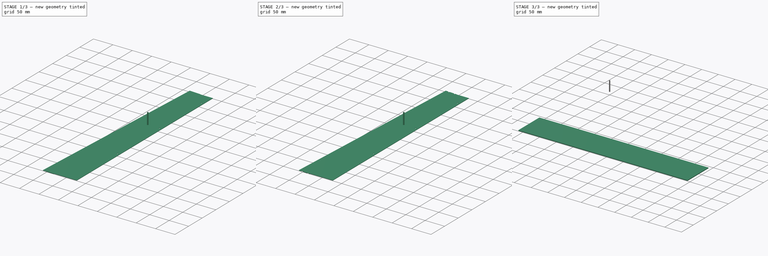
[diagram: build sequence overview — one tinted view per stage of 3, left to right]
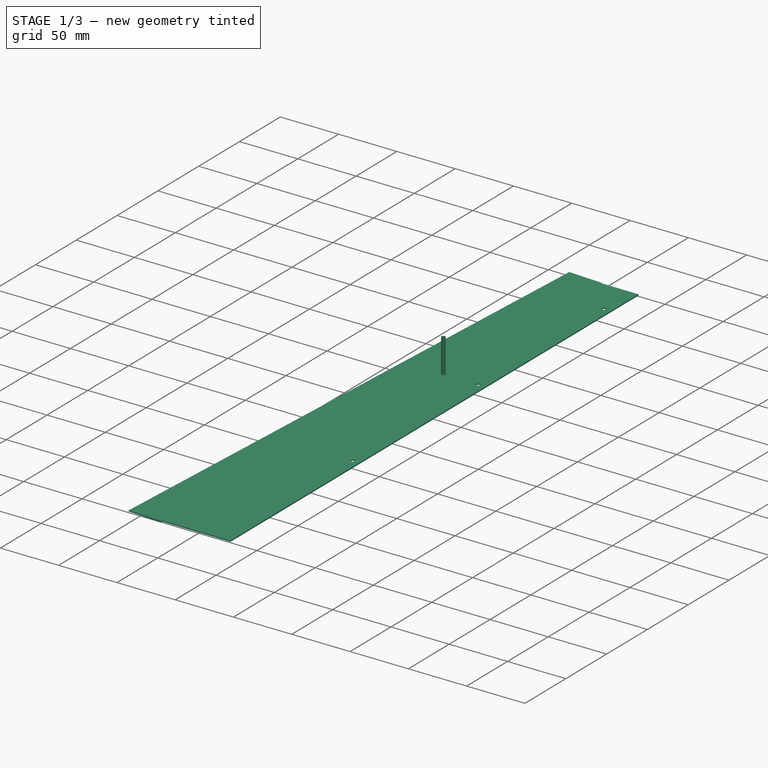
[diagram: stage 1 of 3 — iso view after this stage's code; geometry added in this stage tinted green]
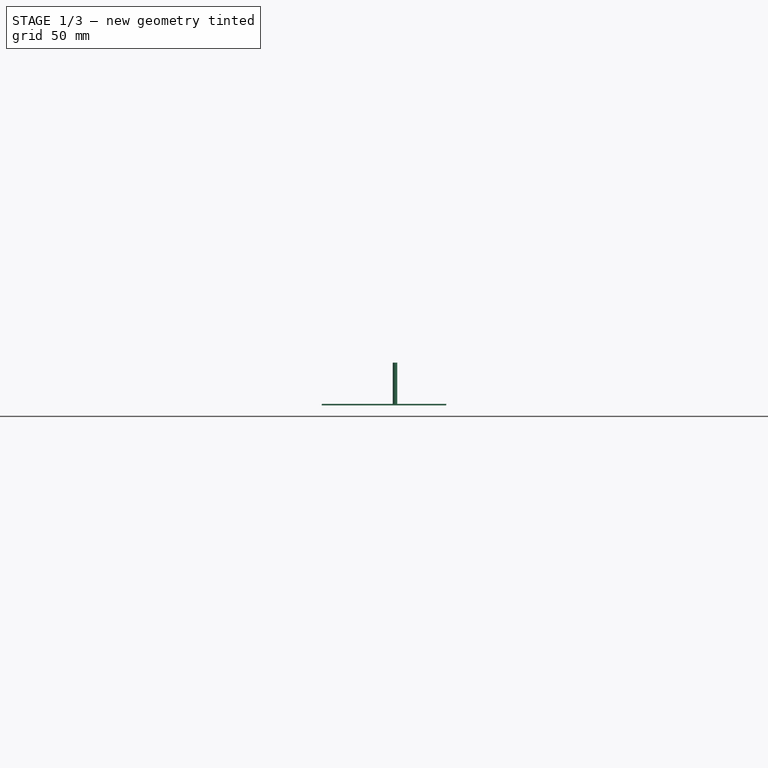
[diagram: stage 1 of 3 — front view after this stage's code; geometry added in this stage tinted green]
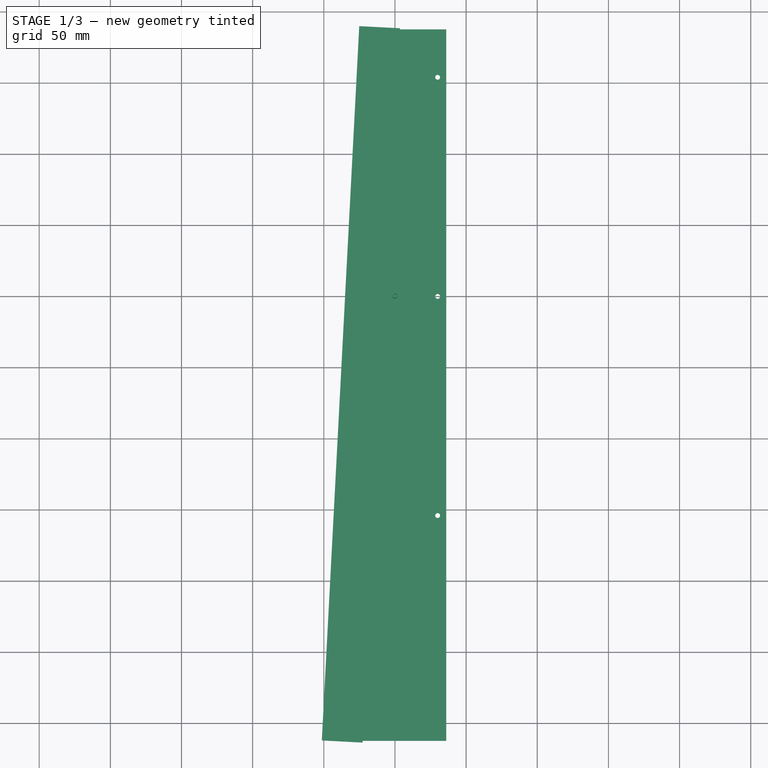
[diagram: stage 1 of 3 — top view after this stage's code; geometry added in this stage tinted green]
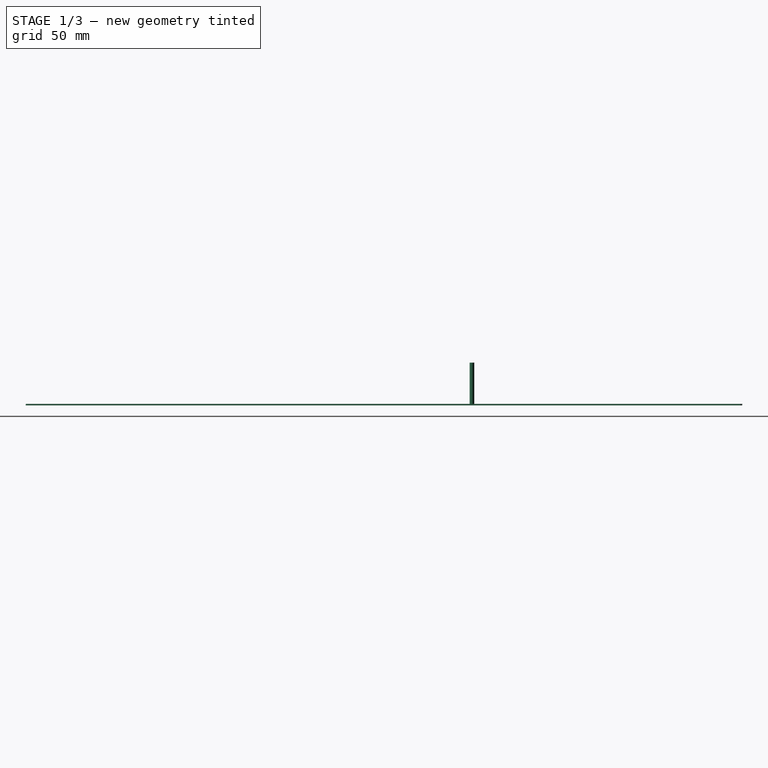
[diagram: stage 1 of 3 — right view after this stage's code; geometry added in this stage tinted green]
FCSTD DOCUMENT  (FreeCAD 0.22R34651 (Git))
Label: composit_stand7_plexiglass_cut
License: All rights reserved
LicenseURL: http://en.wikipedia.org/wiki/All_rights_reserved
objects: App::DocumentObjectGroup×7, Path::FeaturePython×4, Part::FeaturePython×3, Sketcher::SketchObject×2, Part::Part2DObjectPython×2, App::Link×1, Part::Feature×1, PartDesign::FeatureBase×1, App::FeaturePython×1, PartDesign::SubShapeBinder×1, PartDesign::Pocket×1, PartDesign::Body×1
note: 15 computed .brp shape members not serialized (recipe doc carries the construction recipe); baked Part::Feature solids carry a one-line shape summary decoded from their .brp
EXTERNAL_REF file=composit_stand7.FCStd obj=Body011

FEATURE [App::Link] Link  label="sink2_material_0.30ansi"
  LinkedObject = -> <external composit_stand7.FCStd>#Body011
FEATURE [App::DocumentObjectGroup] Group  label="parts"
  Group = -> [Link]
FEATURE [Part::Feature] Unfold  label="sink2_Unfold"
  Placement = pos=(0,0,0) rot=(0.57735,0.57735,0.57735;2.0944rad)
  shape: bbox 87.41 x 503.5 x 1 mm, 13 faces (baked)
FEATURE [Sketcher::SketchObject] Unfold_Sketch_bends  label="sink2_Sketch_bends"
  FullyConstrained = false
  sketch-geometry (2):
    g0: LineSegment StartX=-42.898 StartY=-312.498 StartZ=0 EndX=-16.5884 EndY=189.518 EndZ=0
    g1: LineSegment StartX=-27.5121 StartY=-313.305 StartZ=0 EndX=-1.20254 EndY=188.712 EndZ=0
FEATURE [Part::Part2DObjectPython] Clone2D  label="sink2_Sketch_bends (2D)"  # Draft 2D object (typed FeaturePython)
  Fuse = false
  Objects = -> [Unfold_Sketch_bends]
  Scale = (1,1,1)
FEATURE [PartDesign::FeatureBase] Clone
  BaseFeature = -> Unfold
  Placement = pos=(0,0,0) rot=(0.57735,0.57735,0.57735;2.0944rad)
  expr: BaseFeature = <<sink2_Unfold>>._self
  expr: Placement = .BaseFeature.Placement
FEATURE [App::FeaturePython] SetupSheet  # Path/CAM operation (typed FeaturePython)
  ClearanceHeightExpression = OpStockZMax+SetupSheet.ClearanceHeightOffset
  ClearanceHeightOffset = 5
  CoolantMode = 0
  CoolantModes = None | Flood | Mist
  FinalDepthExpression = -0.1 mm
  HorizRapid = 0
  ProfileDirection = 1
  ProfileSide = 0
  ProfileUseComp = true
  ProfileprocessCircles = true
  ProfileprocessHoles = true
  ProfileprocessPerimeter = true
  SafeHeightExpression = OpStockZMax+SetupSheet.SafeHeightOffset
  SafeHeightOffset = 3
  StartDepthExpression = 3 mm
  StepDownExpression = 4 mm
  VertRapid = 0
FEATURE [Part::FeaturePython] ToolBit  label="3.175mm Endmill"  # Path/CAM toolbit (typed FeaturePython)
  BitPropertyNames = Chipload | CuttingEdgeHeight | Diameter | Flutes | Length | Material | ShankDiameter | SpindleDirection
  BitShape = <path>
  Chipload = 0
  CuttingEdgeHeight = 30
  Diameter = 3.17
  Flutes = 0
  Length = 10
  Material = 0
  ShankDiameter = 3
  ShapeName = endmill
  SpindleDirection = 0
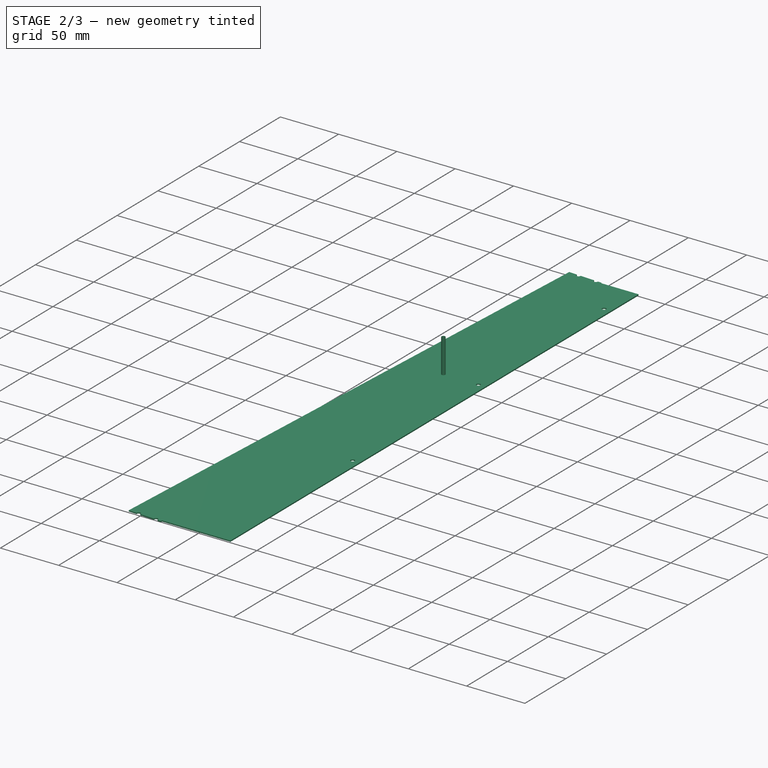
[diagram: stage 2 of 3 — iso view after this stage's code; geometry added in this stage tinted green]
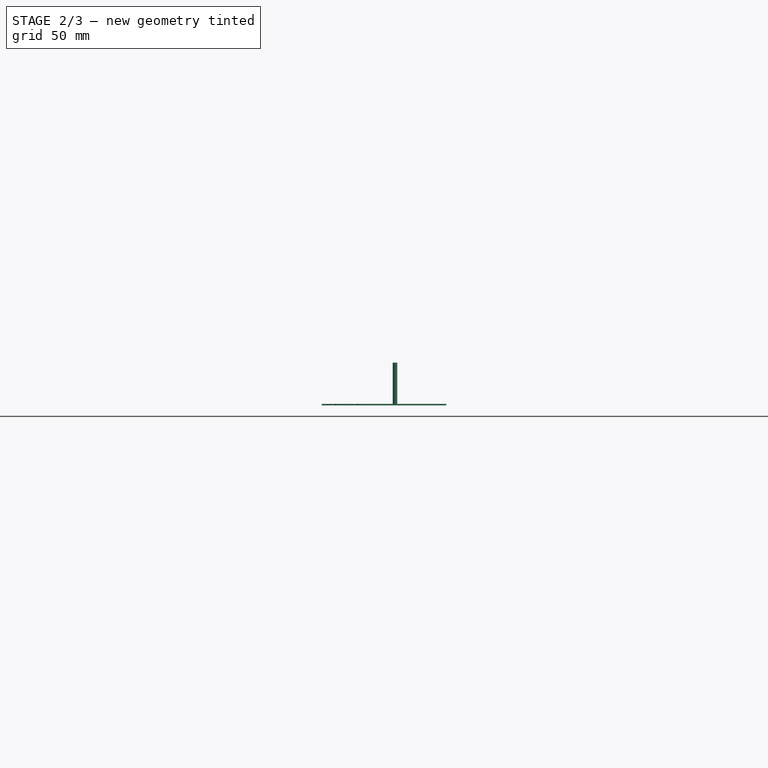
[diagram: stage 2 of 3 — front view after this stage's code; geometry added in this stage tinted green]
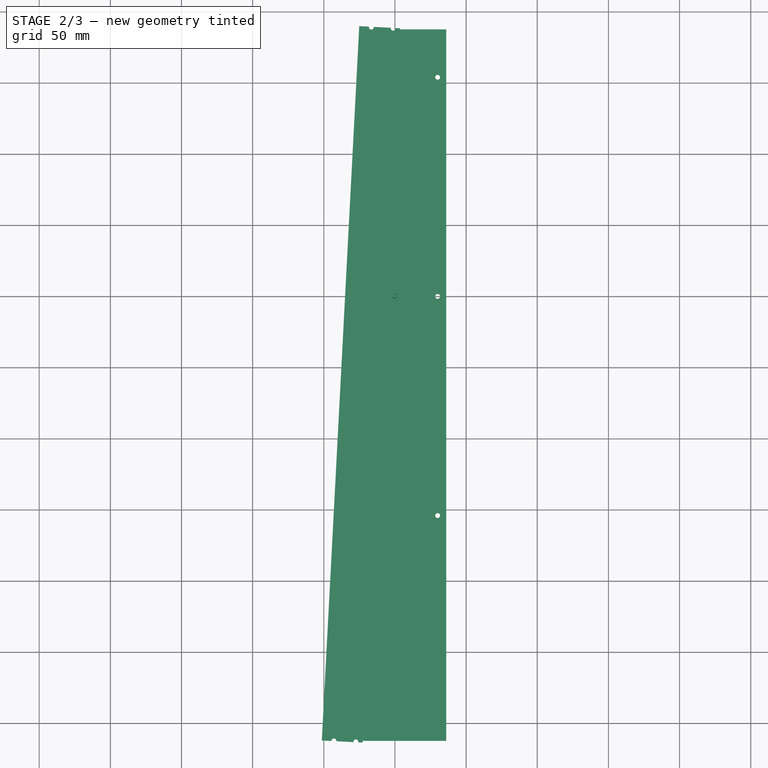
[diagram: stage 2 of 3 — top view after this stage's code; geometry added in this stage tinted green]
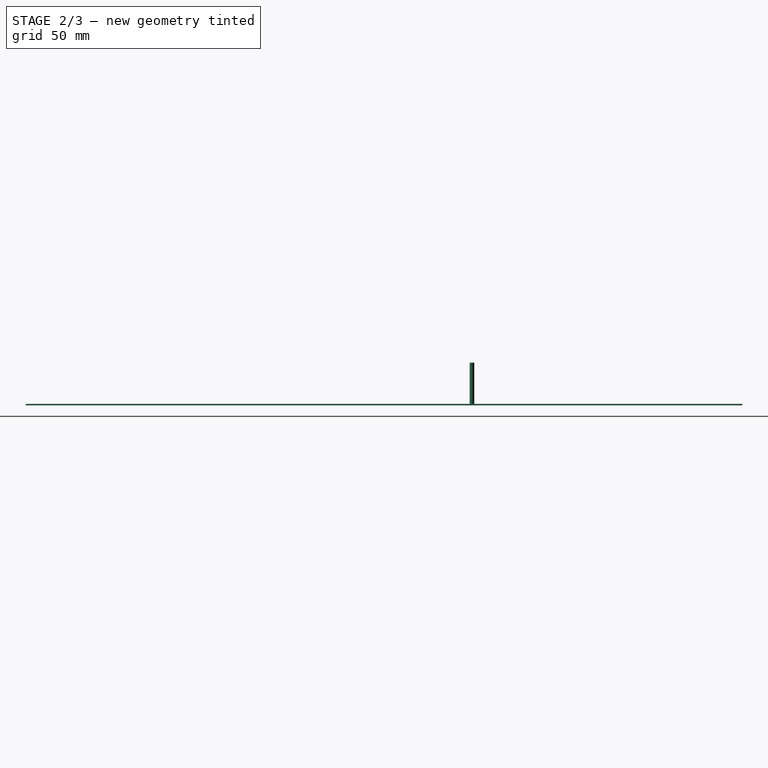
[diagram: stage 2 of 3 — right view after this stage's code; geometry added in this stage tinted green]
FEATURE [Path::FeaturePython] __175mm_Endmill  label="3.175mm Endmill001"  # Path/CAM operation (typed FeaturePython)
  HorizFeed = 33.3333
  HorizRapid = 0
  SpindleDir = 0
  SpindleSpeed = 18000
  Tool = -> ToolBit
  ToolNumber = 1
  VertFeed = 8.33333
  VertRapid = 0
  expr: HorizRapid = SetupSheet.HorizRapid
  expr: VertRapid = SetupSheet.VertRapid
FEATURE [App::DocumentObjectGroup] Tools
  Group = -> [__175mm_Endmill]
FEATURE [PartDesign::SubShapeBinder] Binder
  BindCopyOnChange = 0
  BindMode = 0
  ClaimChildren = false
  Context = -> Body [Binder.]
  Fuse = false
  MakeFace = true
  OffsetFill = false
  OffsetIntersection = false
  OffsetJoinType = 0
  OffsetOpenResult = false
  PartialLoad = false
  Relative = true
  Support = -> [Unfold_Sketch_bends]
  _Version = 2
FEATURE [Sketcher::SketchObject] Sketch
  ExternalGeometry = -> [Binder]
  FullyConstrained = false
  MapMode = 5
  Support = -> [XY_Plane]
  sketch-geometry (4):
    g0: Circle CenterX=-1.21613 CenterY=188.453 CenterZ=0 NormalX=0 NormalY=0 NormalZ=1 AngleXU=0 Radius=1.7
    g1: Circle CenterX=-16.6039 CenterY=189.222 CenterZ=0 NormalX=0 NormalY=0 NormalZ=1 AngleXU=0 Radius=1.7
    g2: Circle CenterX=-27.4966 CenterY=-313.009 CenterZ=0 NormalX=0 NormalY=0 NormalZ=1 AngleXU=0 Radius=1.7
    g3: Circle CenterX=-42.888 CenterY=-312.308 CenterZ=0 NormalX=0 NormalY=0 NormalZ=1 AngleXU=0 Radius=1.7
  constraints (8):
    c: Equal(g3,g2)
    c: Equal(g3,g1)
    c: Equal(g3,g0)
    c: Diameter(g3) = 3.4
    c: PointOnObject(g0,g-3)
    c: PointOnObject(g1,g-4)
    c: PointOnObject(g2,g-3)
    c: PointOnObject(g3,g-4)
FEATURE [PartDesign::Pocket] Pocket
  BaseFeature = -> Clone
  Direction = (0,0,-1)
  Length = 5
  Length2 = 5
  Midplane = true
  Placement = pos=(0,0,0) rot=(0.57735,0.57735,0.57735;2.0944rad)
  Profile = -> Sketch
  ReferenceAxis = -> Sketch [N_Axis]
  Type = 1
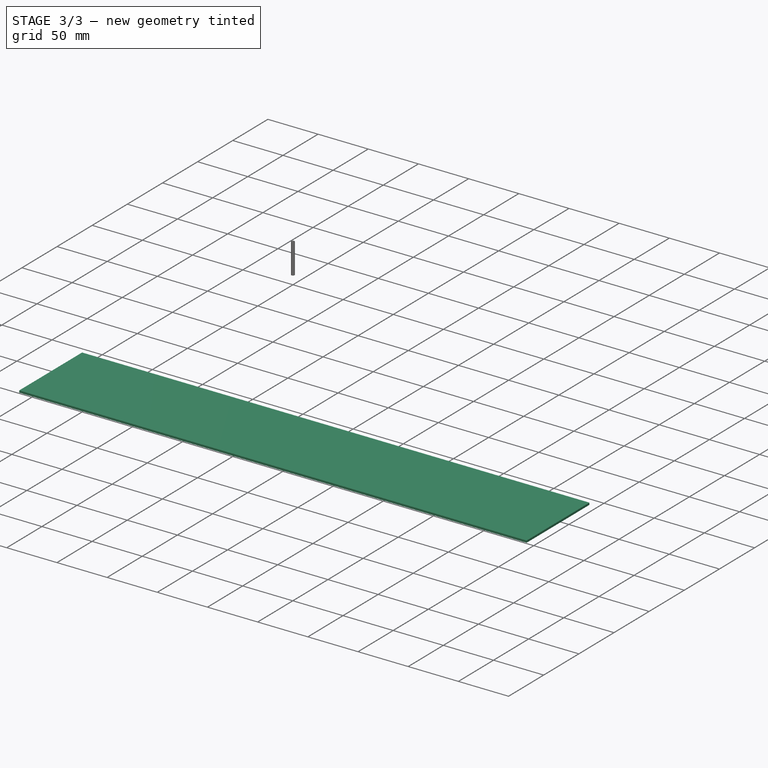
[diagram: stage 3 of 3 — iso view after this stage's code; geometry added in this stage tinted green]
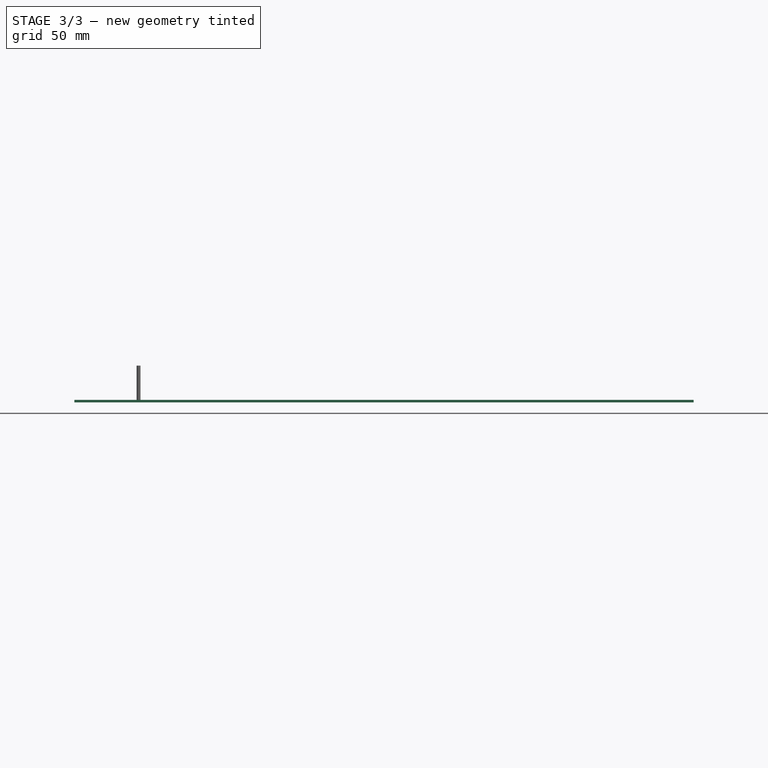
[diagram: stage 3 of 3 — front view after this stage's code; geometry added in this stage tinted green]
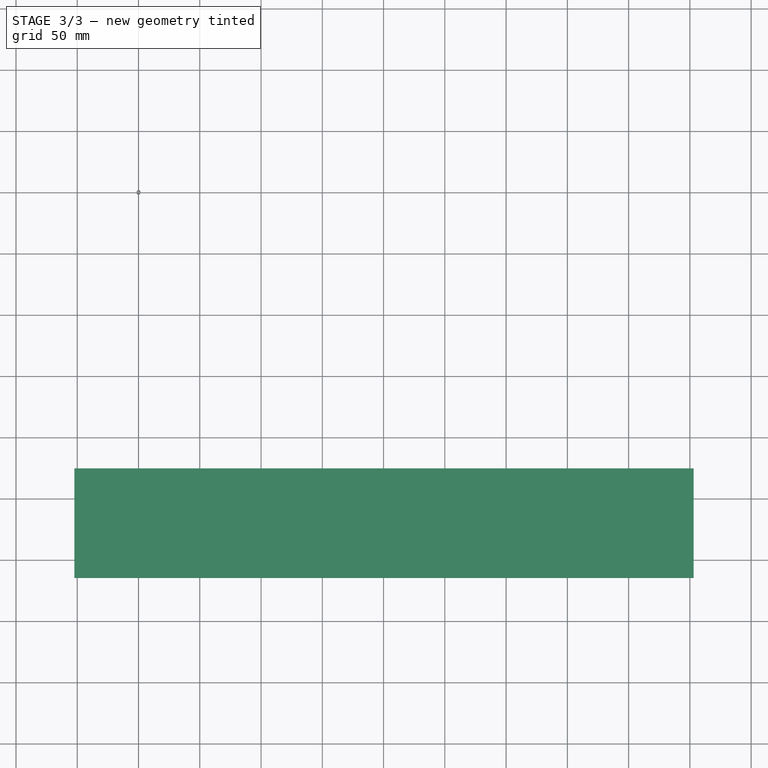
[diagram: stage 3 of 3 — top view after this stage's code; geometry added in this stage tinted green]
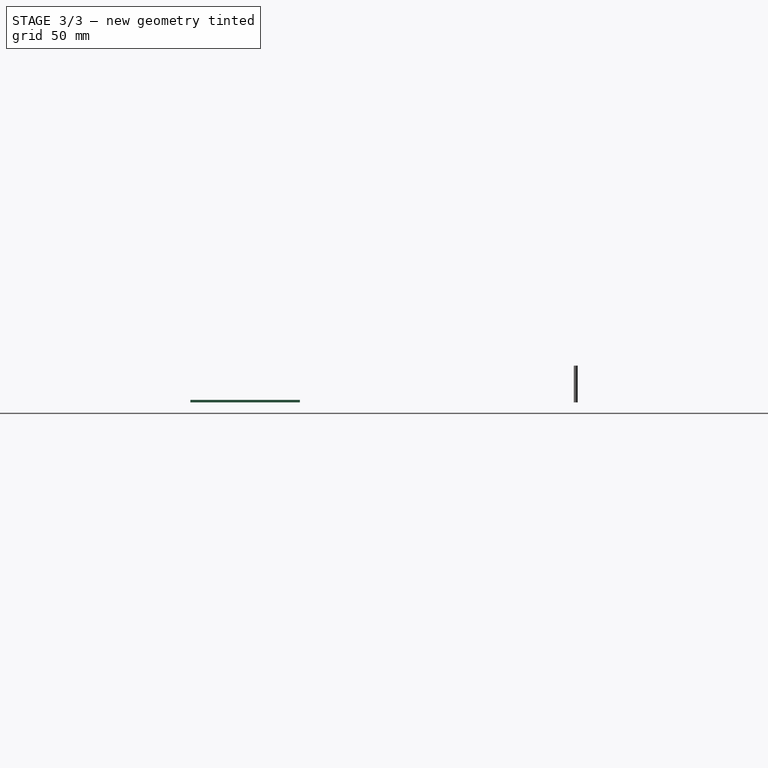
[diagram: stage 3 of 3 — right view after this stage's code; geometry added in this stage tinted green]
FEATURE [PartDesign::Body] Body  label="sink2_Body"
  Group = -> [Clone,Binder,Sketch,Pocket]
  Origin = -> Origin
  Tip = -> Pocket
FEATURE [App::DocumentObjectGroup] Group003  label="sink2_Group"
  Group = -> [Unfold,Unfold_Sketch_bends,Clone2D,Body]
FEATURE [App::DocumentObjectGroup] Group001  label="unfolds"
  Group = -> [Group003]
FEATURE [Part::FeaturePython] Clone001  label="Model-sink2_Body"  # Draft clone (typed FeaturePython)
  AttacherType = Attacher::AttachEngine3D
  Fuse = false
  Objects = -> [Body]
  PathResource = Model
  Placement = pos=(313.37,36,-8.9e-14) rot=(0,0,-1;1.5708rad)
  Scale = (1,1,1)
FEATURE [App::DocumentObjectGroup] Model
  Group = -> [Clone001]
FEATURE [Part::FeaturePython] Stock  # WARN: FeaturePython — macro-defined, semantics opaque (R4)
  Base = -> Model
  ExtXneg = 1
  ExtXpos = 1
  ExtYneg = 1
  ExtYpos = 1
  ExtZneg = 0
  ExtZpos = 1
  Placement = pos=(-51.4071,-313.554,-1.68e-13) rot=(0,0,1;0rad)
  StockType = FromBase
FEATURE [Path::FeaturePython] Profile  # Path/CAM operation (typed FeaturePython)
  Active = true
  AreaParams:
    Tolerance = 1e-07
    FitArcs = True
    Simplify = False
    CleanDistance = 0.0
    Accuracy = 0.01
    Unit = 1.0
    MinArcPoints = 4
    MaxArcPoints = 100
    ClipperScale = 10000000.0
    Fill = 0
    Coplanar = 0
    Reorient = True
    Outline = False
    Explode = False
    OpenMode = 0
    Deflection = 0.01
    SubjectFill = 0
    ClipFill = 0
    Offset = -1.585
    ExtraPass = 0
    Stepover = 0.0
    LastStepover = 0.0
    JoinType = 0
    EndType = 0
    MiterLimit = 2.0
    RoundPrecision = 0.0
    PocketMode = 0
    ToolRadius = 1.0
    PocketExtraOffset = 0.0
    PocketStepover = 0.0
    PocketLastStepover = 0.0
    FromCenter = False
    Angle = 45.0
    AngleShift = 0.0
    Shift = 0.0
    Thicken = False
    SectionCount = -1
    Stepdown = 1.0
    SectionOffset = 0.0
    SectionTolerance = 1e-07
    SectionMode = 2
    Project = False
  Base = -> [Clone001]
  ClearanceHeight = 7
  CoolantMode = 0
  CycleTime = 00:00:19
  Direction = 1
  FinalDepth = -0.1
  HandleMultipleFeatures = 0
  JoinType = 0
  MiterLimit = 0.1
  OffsetExtra = 0
  OpFinalDepth = 1
  OpStartDepth = 2
  OpStockZMax = 2
  OpStockZMin = -1.677e-13
  OpToolDiameter = 3.17
  PathParams = {'orientation': 0, 'feedrate': 33.333333333333336, 'feedrate_v': 8.333333333333334, 'verbose': True, 'resume_height': 5.000000000000067, 'retraction': 7.000000000000067, 'return_end': True, 'preamble': False, 'start': Vector (313.2643452369521, 6.000540292592715, 7.000000000000067)}
  SafeHeight = 5
  Side = 1
  SplitArcs = false
  StartDepth = 3
  StartPoint = (0,0,0)
  StepDown = 4
  ToolController = -> __175mm_Endmill
  UseComp = true
  UseStartPoint = false
  processCircles = true
  processHoles = true
  processPerimeter = false
  expr: ClearanceHeight = OpStockZMax + SetupSheet.ClearanceHeightOffset
  expr: FinalDepth = -0.1 mm
  expr: SafeHeight = OpStockZMax + SetupSheet.SafeHeightOffset
  expr: StartDepth = 3 mm
  expr: StepDown = 4 mm
FEATURE [Path::FeaturePython] Profile001  # Path/CAM operation (typed FeaturePython)
  Active = true
  AreaParams:
    Tolerance = 1e-07
    FitArcs = True
    Simplify = False
    CleanDistance = 0.0
    Accuracy = 0.01
    Unit = 1.0
    MinArcPoints = 4
    MaxArcPoints = 100
    ClipperScale = 10000000.0
    Fill = 0
    Coplanar = 0
    Reorient = True
    Outline = False
    Explode = False
    OpenMode = 0
    Deflection = 0.01
    SubjectFill = 0
    ClipFill = 0
    Offset = 1.585
    ExtraPass = 0
    Stepover = 0.0
    LastStepover = 0.0
    JoinType = 0
    EndType = 0
    MiterLimit = 2.0
    RoundPrecision = 0.0
    PocketMode = 0
    ToolRadius = 1.0
    PocketExtraOffset = 0.0
    PocketStepover = 0.0
    PocketLastStepover = 0.0
    FromCenter = False
    Angle = 45.0
    AngleShift = 0.0
    Shift = 0.0
    Thicken = False
    SectionCount = -1
    Stepdown = 1.0
    SectionOffset = 0.0
    SectionTolerance = 1e-07
    SectionMode = 2
    Project = False
  ClearanceHeight = 7
  CoolantMode = 0
  CycleTime = 00:00:52
  Direction = 1
  FinalDepth = -0.1
  HandleMultipleFeatures = 0
  JoinType = 0
  MiterLimit = 0.1
  OffsetExtra = 0
  OpFinalDepth = -1.677e-13
  OpStartDepth = 2
  OpStockZMax = 2
  OpStockZMin = -1.677e-13
  OpToolDiameter = 3.17
  PathParams:
    orientation = 0
    feedrate = 33.333333333333336
    feedrate_v = 8.333333333333334
    verbose = True
    resume_height = 5.000000000000067
    retraction = 7.000000000000067
    return_end = True
    preamble = False
  SafeHeight = 5
  Side = 0
  SplitArcs = false
  StartDepth = 3
  StartPoint = (0,0,0)
  StepDown = 4
  ToolController = -> __175mm_Endmill
  UseComp = true
  UseStartPoint = false
  processCircles = false
  processHoles = false
  processPerimeter = true
  expr: ClearanceHeight = OpStockZMax + SetupSheet.ClearanceHeightOffset
  expr: FinalDepth = -0.1 mm
  expr: SafeHeight = OpStockZMax + SetupSheet.SafeHeightOffset
  expr: Side = 0
  expr: StartDepth = 3 mm
  expr: StepDown = 4 mm
FEATURE [App::DocumentObjectGroup] Operations
  Group = -> [Profile,Profile001]
FEATURE [Path::FeaturePython] Job  # Path/CAM operation (typed FeaturePython)
  CycleTime = 00:01:11
  Fixtures = G54
  GeometryTolerance = 0.01
  JobType = 0
  LastPostProcessDate = 2023-10-13 16:56:13.516885
  LastPostProcessOutput = <userpath>/2CAF-B51C/1.tap \n<userpath>/2CAF-B51C/2.tap
  Model = -> Model
  Operations = -> Operations
  OrderOutputBy = 2
  PostProcessor = 3
  PostProcessorOutputFile = %d.%j.tap
  SetupSheet = -> SetupSheet
  SplitOutput = true
  Stock = -> Stock
  Tools = -> Tools
FEATURE [App::DocumentObjectGroup] Group002  label="jobs"
  Group = -> [Job]
FEATURE [Part::Part2DObjectPython] Rectangle  # Draft 2D object (typed FeaturePython)
  Area = 0
  ChamferSize = 0
  Columns = 1
  FilletRadius = 0
  Height = 1500
  Length = 1500
  MakeFace = false
  Rows = 1
note: 1 file-system path scrubbed to <path> (originals preserved in the JSON sidecar)
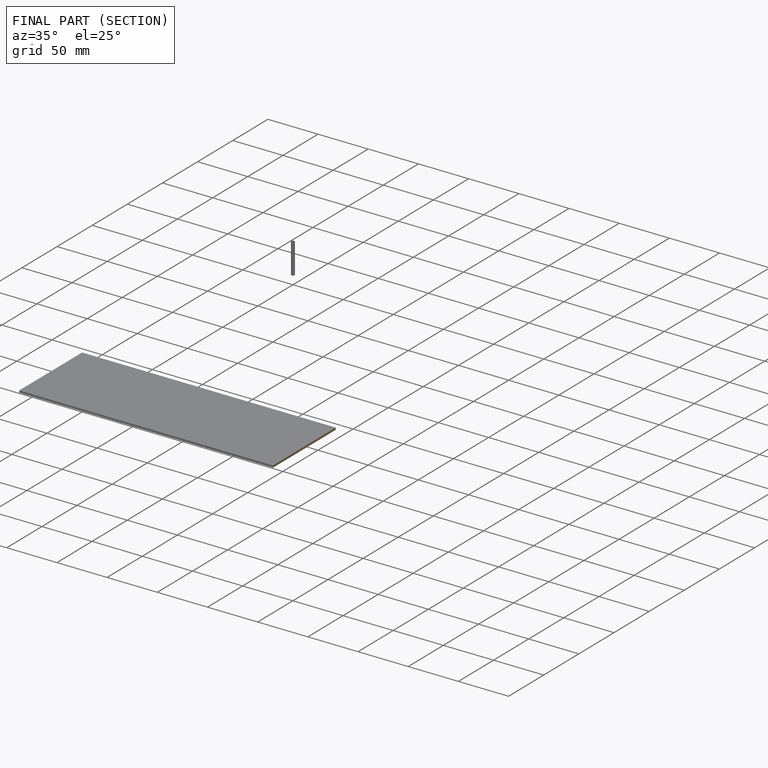
[diagram: finished part — half-section view (interior)]
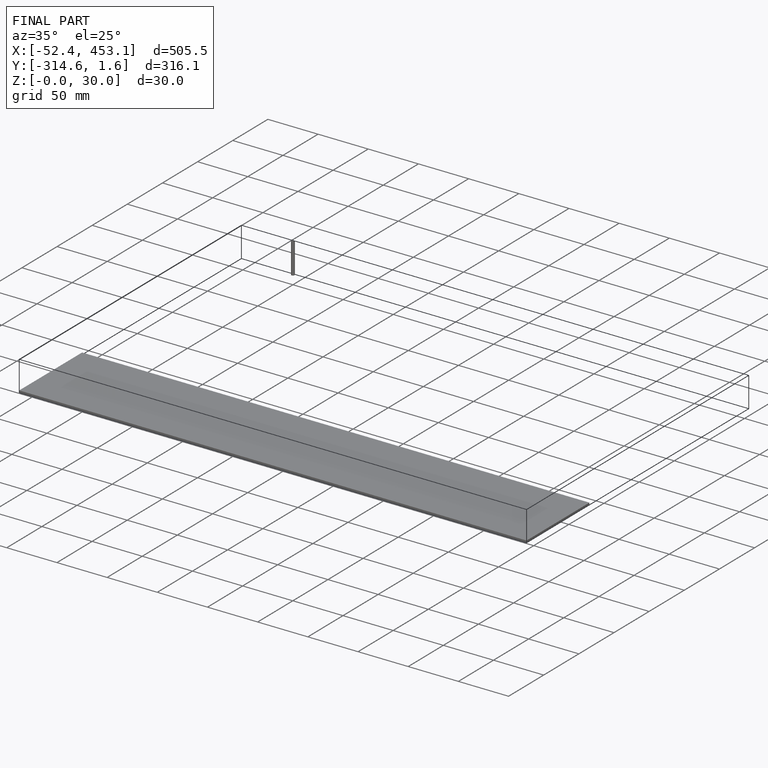
[diagram: finished part — iso view with bounding-box wireframe]
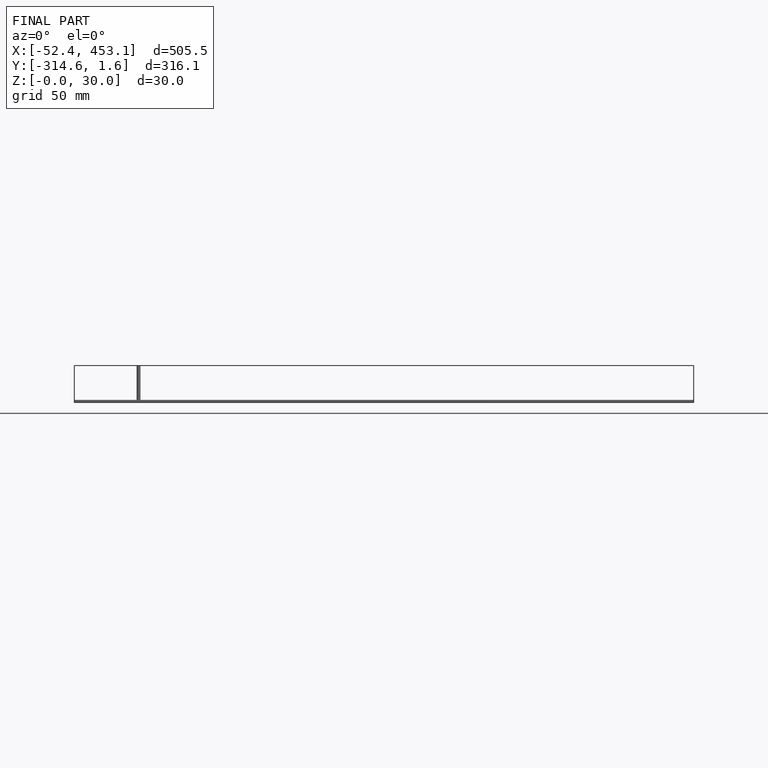
[diagram: finished part — front view with bounding-box wireframe]
